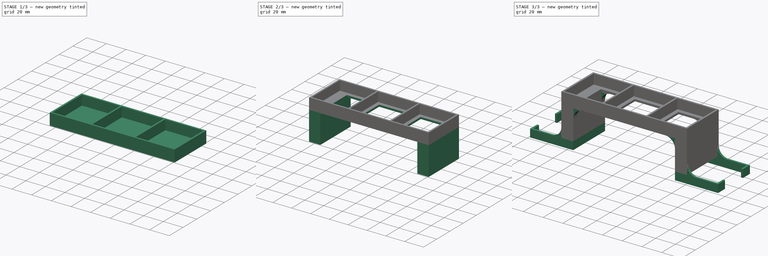
[diagram: build sequence overview — one tinted view per stage of 3, left to right]
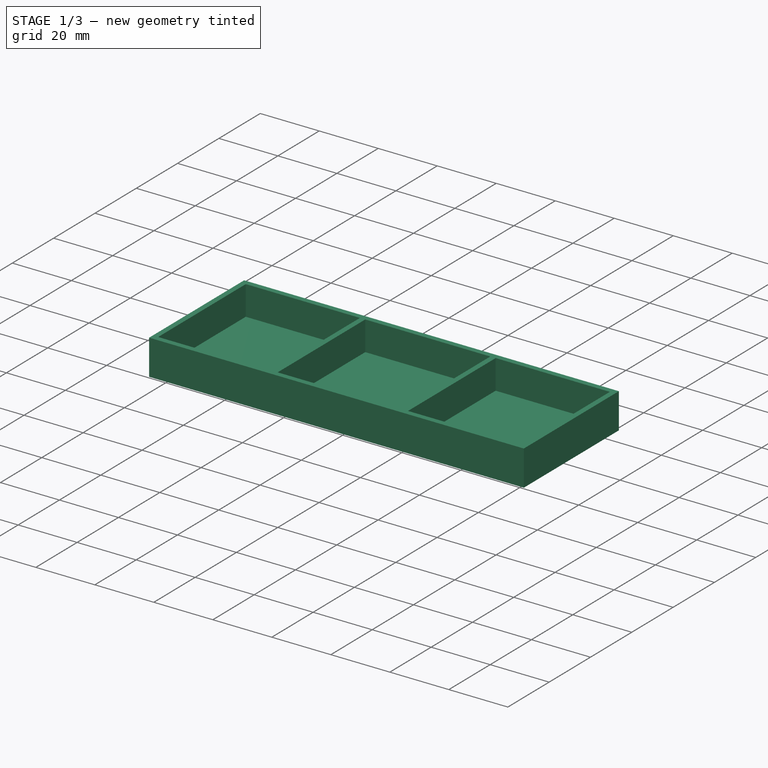
[diagram: stage 1 of 3 — iso view after this stage's code; geometry added in this stage tinted green]
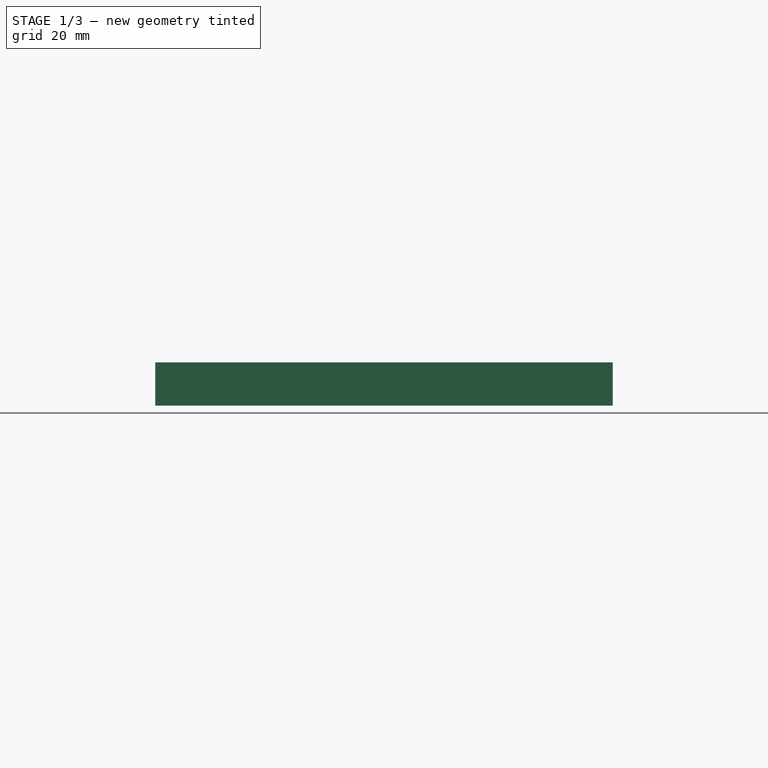
[diagram: stage 1 of 3 — front view after this stage's code; geometry added in this stage tinted green]
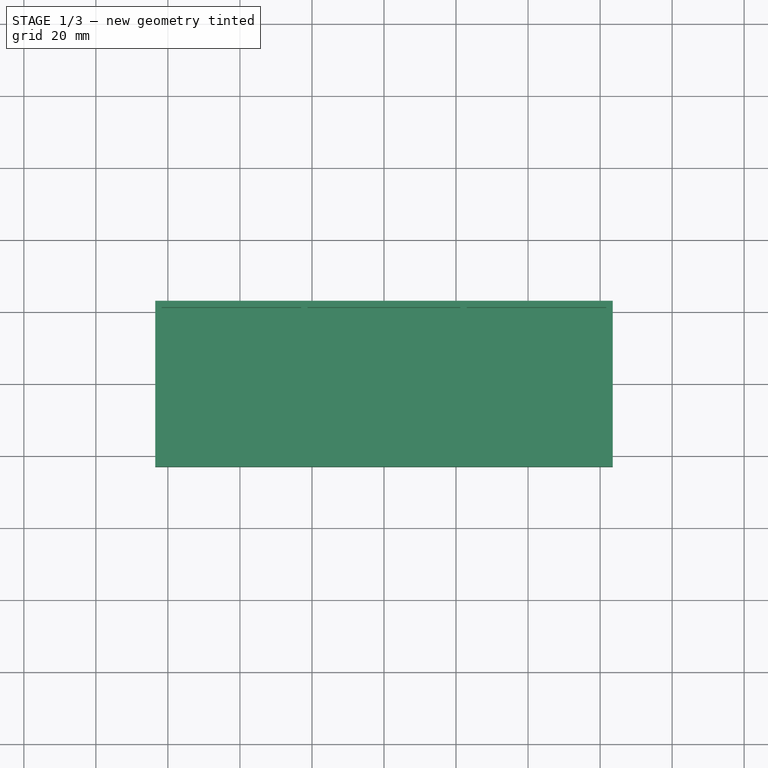
[diagram: stage 1 of 3 — top view after this stage's code; geometry added in this stage tinted green]
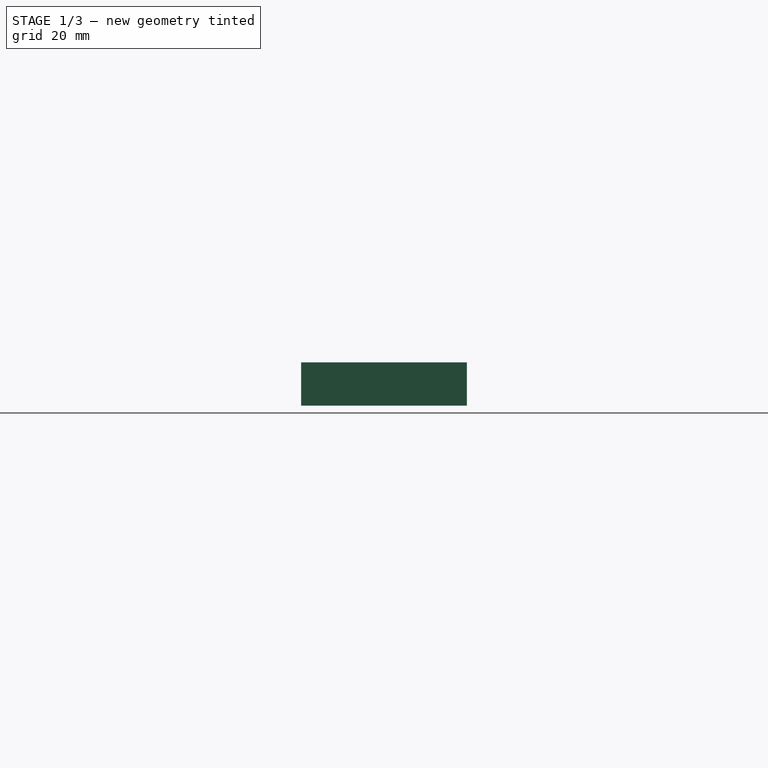
[diagram: stage 1 of 3 — right view after this stage's code; geometry added in this stage tinted green]
FCSTD DOCUMENT  (FreeCAD 0.15R4671 (Git))
Label: Sixth Motor Frame
License: All rights reserved
LicenseURL: http://en.wikipedia.org/wiki/All_rights_reserved
objects: Sketcher::SketchObject×5, PartDesign::Pad×4, PartDesign::Pocket×1, PartDesign::Fillet×1
note: 16 computed .brp shape members not serialized (recipe doc carries the construction recipe); baked Part::Feature solids carry a one-line shape summary decoded from their .brp

FEATURE [Sketcher::SketchObject] Sketch
  sketch-geometry (4):
    g0: LineSegment StartX=-63.5 StartY=23 StartZ=0 EndX=63.5 EndY=23 EndZ=0
    g1: LineSegment StartX=63.5 StartY=23 StartZ=0 EndX=63.5 EndY=-23 EndZ=0
    g2: LineSegment StartX=63.5 StartY=-23 StartZ=0 EndX=-63.5 EndY=-23 EndZ=0
    g3: LineSegment StartX=-63.5 StartY=-23 StartZ=0 EndX=-63.5 EndY=23 EndZ=0
  constraints (12):
    c: Coincident(g0,g1)
    c: Coincident(g1,g2)
    c: Coincident(g2,g3)
    c: Coincident(g3,g0)
    c: Horizontal(g0)
    c: Horizontal(g2)
    c: Vertical(g1)
    c: Vertical(g3)
    c: Symmetric(g0,g0,g-2)
    c: Symmetric(g0,g1,g-1)
    c: Distance(g3) = 46
    c: Distance(g0) = 127
FEATURE [PartDesign::Pad] Pad
  Length = 2
  Length2 = 100
  Sketch = -> Sketch
  Type = 0
FEATURE [Sketcher::SketchObject] Sketch001
  ExternalGeometry = -> [Pad]
  Placement = pos=(0,0,2) rot=(0,0,1;0rad)
  Support = -> Pad [Face6]
  sketch-geometry (16):
    g0: LineSegment StartX=-63.5 StartY=23 StartZ=0 EndX=63.5 EndY=23 EndZ=0
    g1: LineSegment StartX=63.5 StartY=-23 StartZ=0 EndX=-63.5 EndY=-23 EndZ=0
    g2: LineSegment StartX=-21.2 StartY=21.2 StartZ=0 EndX=21.2 EndY=21.2 EndZ=0
    g3: LineSegment StartX=21.2 StartY=21.2 StartZ=0 EndX=21.2 EndY=-21.2 EndZ=0
    g4: LineSegment StartX=21.2 StartY=-21.2 StartZ=0 EndX=-21.2 EndY=-21.2 EndZ=0
    g5: LineSegment StartX=-21.2 StartY=-21.2 StartZ=0 EndX=-21.2 EndY=21.2 EndZ=0
    g6: LineSegment StartX=-61.7 StartY=21.2 StartZ=0 EndX=-23 EndY=21.2 EndZ=0
    g7: LineSegment StartX=-23 StartY=21.2 StartZ=0 EndX=-23 EndY=-21.2 EndZ=0
    g8: LineSegment StartX=-23 StartY=-21.2 StartZ=0 EndX=-61.7 EndY=-21.2 EndZ=0
    g9: LineSegment StartX=-61.7 StartY=-21.2 StartZ=0 EndX=-61.7 EndY=21.2 EndZ=0
    g10: LineSegment StartX=23 StartY=21.2 StartZ=0 EndX=61.7 EndY=21.2 EndZ=0
    g11: LineSegment StartX=61.7 StartY=21.2 StartZ=0 EndX=61.7 EndY=-21.2 EndZ=0
    g12: LineSegment StartX=61.7 StartY=-21.2 StartZ=0 EndX=23 EndY=-21.2 EndZ=0
    g13: LineSegment StartX=23 StartY=-21.2 StartZ=0 EndX=23 EndY=21.2 EndZ=0
    g14: LineSegment StartX=63.5 StartY=23 StartZ=0 EndX=63.5 EndY=-23 EndZ=0
    g15: LineSegment StartX=-63.5 StartY=23 StartZ=0 EndX=-63.5 EndY=-23 EndZ=0
  constraints (43):
    c: Coincident(g-6,g0)
    c: Coincident(g0,g-5)
    c: Coincident(g1,g-6)
    c: Coincident(g2,g3)
    c: Coincident(g3,g4)
    c: Coincident(g4,g5)
    c: Coincident(g5,g2)
    c: Horizontal(g2)
    c: Horizontal(g4)
    c: Vertical(g3)
    c: Vertical(g5)
    c: Symmetric(g4,g3,g-2)
    c: Symmetric(g4,g2,g-1)
    c: Equal(g5,g2)
    c: Coincident(g6,g7)
    c: Coincident(g7,g8)
    c: Coincident(g8,g9)
    c: Coincident(g9,g6)
    c: Horizontal(g6)
    c: Horizontal(g8)
    c: Vertical(g7)
    c: Vertical(g9)
    c: Coincident(g10,g11)
    c: Coincident(g11,g12)
    c: Coincident(g12,g13)
    c: Coincident(g13,g10)
    c: Horizontal(g10)
    c: Horizontal(g12)
    c: Vertical(g11)
    c: Vertical(g13)
    c: Coincident(g14,g0)
    c: Coincident(g14,g1)
    c: Coincident(g15,g0)
    c: Coincident(g15,g1)
    c: Equal(g7,g5)
    c: Equal(g5,g13)
    c: Symmetric(g6,g7,g-1)
    c: Symmetric(g10,g6,g-2)
    c: DistanceX(g2,g10) = 1.8
    c: DistanceY(g10,g0) = 1.8
    c: DistanceX(g10,g0) = 1.8
    c: Symmetric(g10,g6,g-2)
    c: Coincident(g1,g-5)
FEATURE [PartDesign::Pad] Pad001
  Length = 10
  Length2 = 100
  Sketch = -> Sketch001
  Type = 0
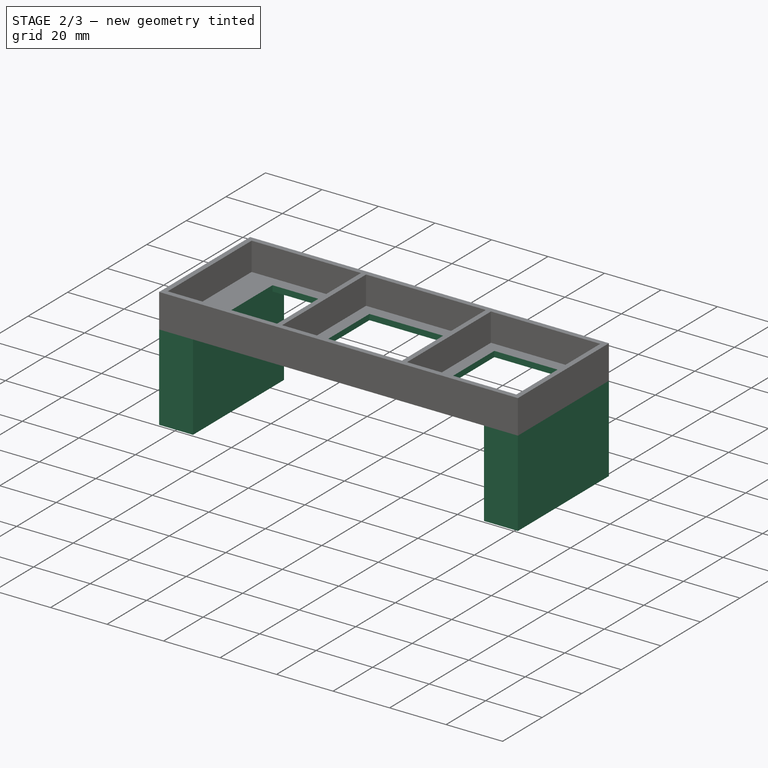
[diagram: stage 2 of 3 — iso view after this stage's code; geometry added in this stage tinted green]
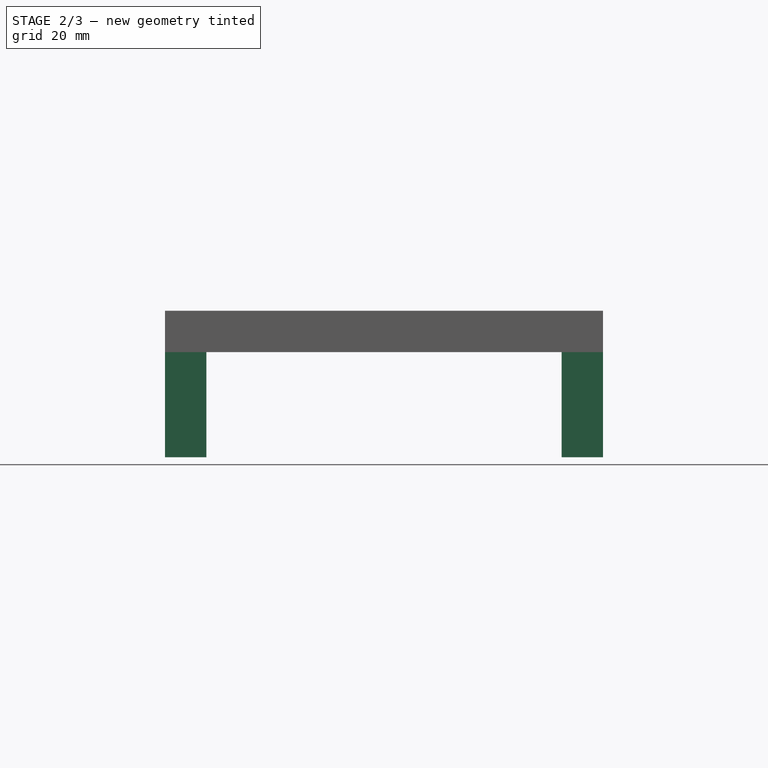
[diagram: stage 2 of 3 — front view after this stage's code; geometry added in this stage tinted green]
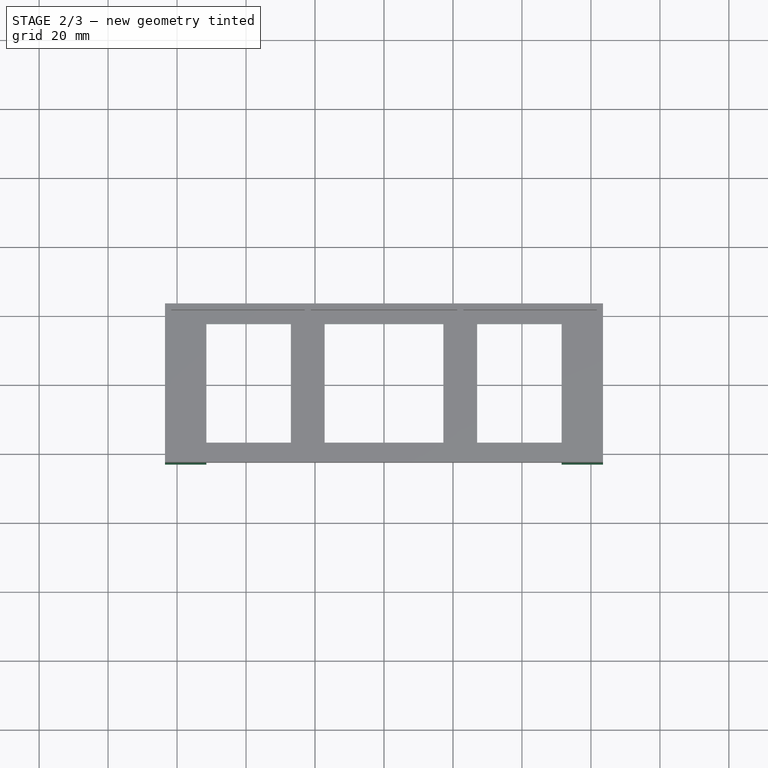
[diagram: stage 2 of 3 — top view after this stage's code; geometry added in this stage tinted green]
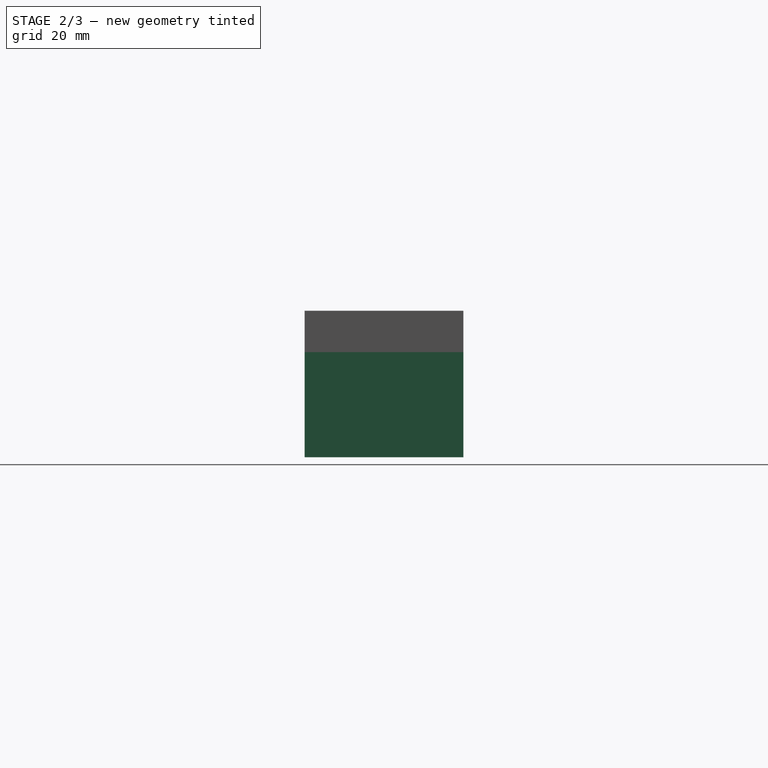
[diagram: stage 2 of 3 — right view after this stage's code; geometry added in this stage tinted green]
FEATURE [Sketcher::SketchObject] Sketch002
  ExternalGeometry = -> [Pad001]
  Placement = pos=(0,0,2) rot=(0,0,1;0rad)
  Support = -> Pad001 [Face25]
  sketch-geometry (12):
    g0: LineSegment StartX=-51.5 StartY=17.2 StartZ=0 EndX=-27 EndY=17.2 EndZ=0
    g1: LineSegment StartX=-27 StartY=17.2 StartZ=0 EndX=-27 EndY=-17.2 EndZ=0
    g2: LineSegment StartX=-27 StartY=-17.2 StartZ=0 EndX=-51.5 EndY=-17.2 EndZ=0
    g3: LineSegment StartX=-51.5 StartY=-17.2 StartZ=0 EndX=-51.5 EndY=17.2 EndZ=0
    g4: LineSegment StartX=-17.2 StartY=17.2 StartZ=0 EndX=17.2 EndY=17.2 EndZ=0
    g5: LineSegment StartX=17.2 StartY=17.2 StartZ=0 EndX=17.2 EndY=-17.2 EndZ=0
    g6: LineSegment StartX=17.2 StartY=-17.2 StartZ=0 EndX=-17.2 EndY=-17.2 EndZ=0
    g7: LineSegment StartX=-17.2 StartY=-17.2 StartZ=0 EndX=-17.2 EndY=17.2 EndZ=0
    g8: LineSegment StartX=27 StartY=17.2 StartZ=0 EndX=51.5 EndY=17.2 EndZ=0
    g9: LineSegment StartX=51.5 StartY=17.2 StartZ=0 EndX=51.5 EndY=-17.2 EndZ=0
    g10: LineSegment StartX=51.5 StartY=-17.2 StartZ=0 EndX=27 EndY=-17.2 EndZ=0
    g11: LineSegment StartX=27 StartY=-17.2 StartZ=0 EndX=27 EndY=17.2 EndZ=0
  constraints (34):
    c: Coincident(g0,g1)
    c: Coincident(g1,g2)
    c: Coincident(g2,g3)
    c: Coincident(g3,g0)
    c: Horizontal(g0)
    c: Horizontal(g2)
    c: Vertical(g1)
    c: Vertical(g3)
    c: Coincident(g4,g5)
    c: Coincident(g5,g6)
    c: Coincident(g6,g7)
    c: Coincident(g7,g4)
    c: Horizontal(g4)
    c: Horizontal(g6)
    c: Vertical(g5)
    c: Coincident(g8,g9)
    c: Coincident(g9,g10)
    c: Coincident(g10,g11)
    c: Coincident(g11,g8)
    c: Horizontal(g8)
    c: Horizontal(g10)
    c: Vertical(g9)
    c: Vertical(g11)
    c: Equal(g3,g5)
    c: Equal(g5,g9)
    c: Symmetric(g8,g9,g-1)
    c: Equal(g7,g4)
    c: Symmetric(g4,g6,g-1)
    c: Symmetric(g4,g4,g-2)
    c: Equal(g8,g0)
    c: Symmetric(g8,g0,g-2)
    c: DistanceY(g6,g-3) = -4
    c: DistanceX(g-6,g10) = 4
    c: Distance(g8,g0) = 103
FEATURE [PartDesign::Pocket] Pocket
  Length = 5
  Sketch = -> Sketch002
  Type = 1
FEATURE [Sketcher::SketchObject] Sketch004
  ExternalGeometry = -> [Pocket]
  Placement = pos=(0,0,0) rot=(1,0,0;3.14159rad)
  Support = -> Pocket [Face1]
  sketch-geometry (8):
    g0: LineSegment StartX=-63.5 StartY=23 StartZ=0 EndX=-51.5 EndY=23 EndZ=0
    g1: LineSegment StartX=-51.5 StartY=23 StartZ=0 EndX=-51.5 EndY=-23 EndZ=0
    g2: LineSegment StartX=-51.5 StartY=-23 StartZ=0 EndX=-63.5 EndY=-23 EndZ=0
    g3: LineSegment StartX=-63.5 StartY=-23 StartZ=0 EndX=-63.5 EndY=23 EndZ=0
    g4: LineSegment StartX=63.5 StartY=23 StartZ=0 EndX=51.5 EndY=23 EndZ=0
    g5: LineSegment StartX=51.5 StartY=23 StartZ=0 EndX=51.5 EndY=-23 EndZ=0
    g6: LineSegment StartX=51.5 StartY=-23 StartZ=0 EndX=63.5 EndY=-23 EndZ=0
    g7: LineSegment StartX=63.5 StartY=-23 StartZ=0 EndX=63.5 EndY=23 EndZ=0
  constraints (22):
    c: Coincident(g0,g1)
    c: Coincident(g1,g2)
    c: Coincident(g2,g3)
    c: Coincident(g3,g0)
    c: Horizontal(g0)
    c: Horizontal(g2)
    c: Vertical(g1)
    c: Vertical(g3)
    c: Coincident(g0,g-4)
    c: PointOnObject(g1,g-5)
    c: Coincident(g4,g5)
    c: Coincident(g5,g6)
    c: Coincident(g6,g7)
    c: Coincident(g7,g4)
    c: Horizontal(g4)
    c: Horizontal(g6)
    c: Vertical(g5)
    c: Vertical(g7)
    c: Coincident(g4,g-6)
    c: PointOnObject(g5,g-5)
    c: Symmetric(g5,g1,g-2)
    c: Distance(g0,g4) = 103
FEATURE [PartDesign::Pad] Pad002
  Length = 30.5
  Length2 = 100
  Sketch = -> Sketch004
  Type = 0
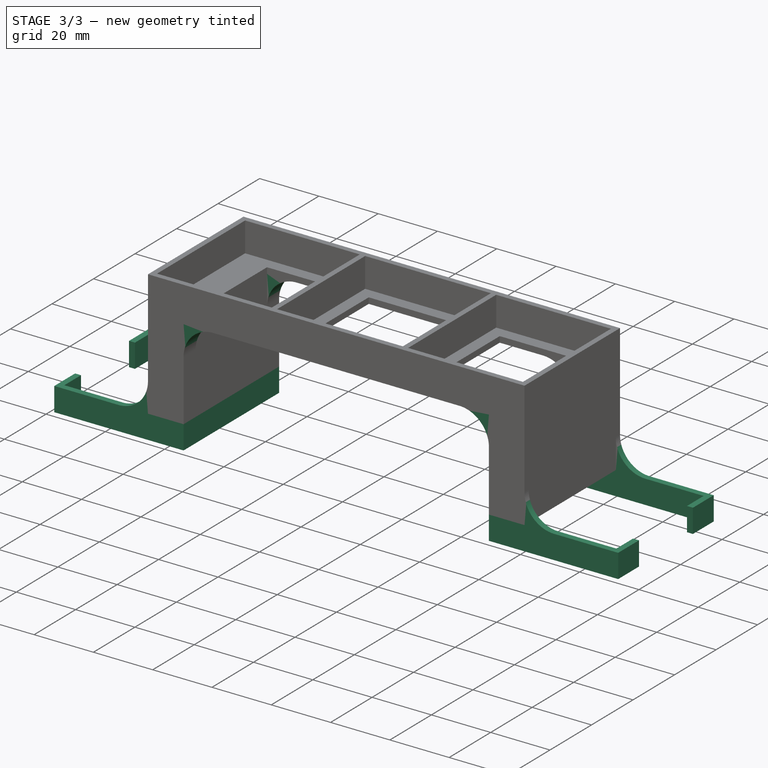
[diagram: stage 3 of 3 — iso view after this stage's code; geometry added in this stage tinted green]
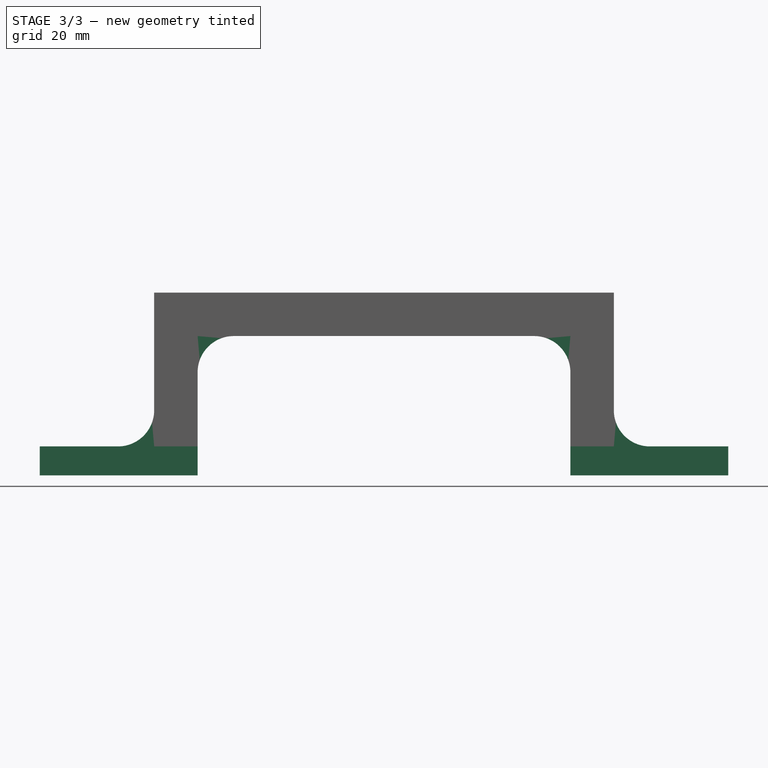
[diagram: stage 3 of 3 — front view after this stage's code; geometry added in this stage tinted green]
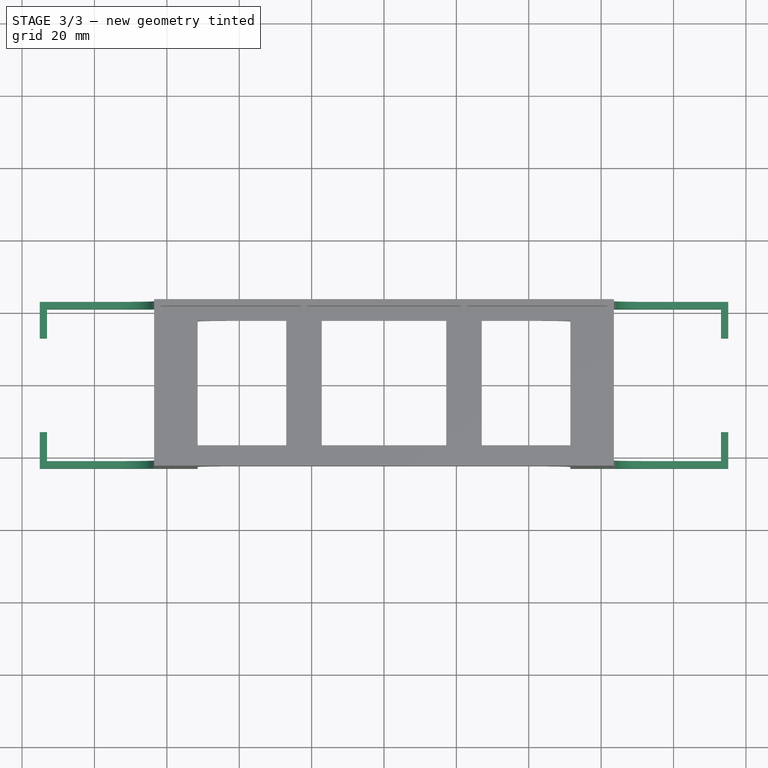
[diagram: stage 3 of 3 — top view after this stage's code; geometry added in this stage tinted green]
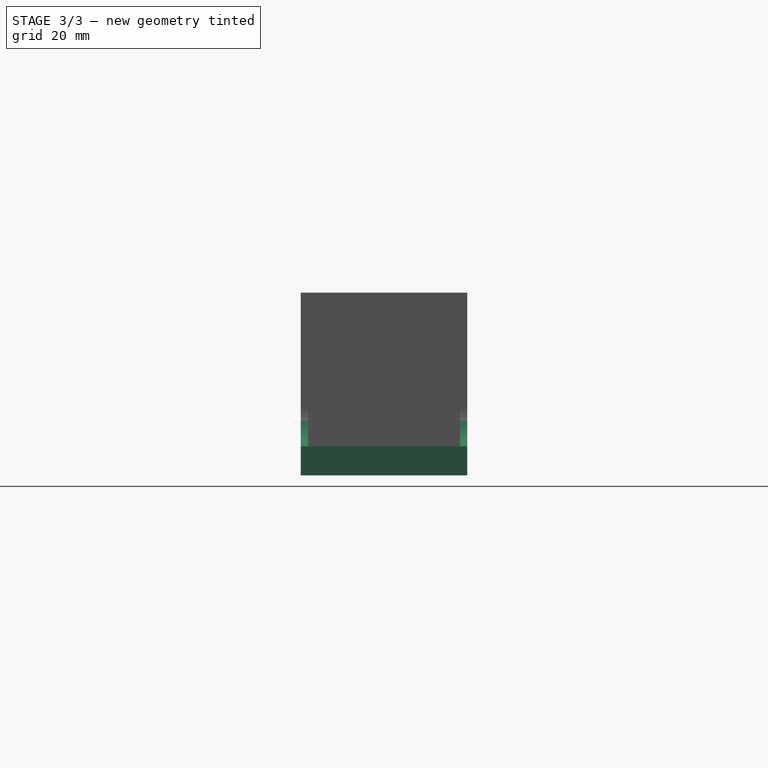
[diagram: stage 3 of 3 — right view after this stage's code; geometry added in this stage tinted green]
FEATURE [Sketcher::SketchObject] Sketch005
  ExternalGeometry = -> [Pad002]
  Placement = pos=(0,0,-30.5) rot=(1,0,0;3.14159rad)
  Support = -> Pad002 [Face26]
  sketch-geometry (24):
    g0: LineSegment StartX=-51.5 StartY=23 StartZ=0 EndX=-95.1 EndY=23 EndZ=0
    g1: LineSegment StartX=-95.1 StartY=23 StartZ=0 EndX=-95.1 EndY=13 EndZ=0
    g2: LineSegment StartX=-95.1 StartY=13 StartZ=0 EndX=-93.1 EndY=13 EndZ=0
    g3: LineSegment StartX=-93.1 StartY=13 StartZ=0 EndX=-93.1 EndY=21 EndZ=0
    g4: LineSegment StartX=-93.1 StartY=21 StartZ=0 EndX=-53.5 EndY=21 EndZ=0
    g5: LineSegment StartX=-53.5 StartY=21 StartZ=0 EndX=-53.5 EndY=-21 EndZ=0
    g6: LineSegment StartX=-53.5 StartY=-21 StartZ=0 EndX=-93.1 EndY=-21 EndZ=0
    g7: LineSegment StartX=-93.1 StartY=-21 StartZ=0 EndX=-93.1 EndY=-13 EndZ=0
    g8: LineSegment StartX=-93.1 StartY=-13 StartZ=0 EndX=-95.1 EndY=-13 EndZ=0
    g9: LineSegment StartX=-95.1 StartY=-13 StartZ=0 EndX=-95.1 EndY=-23 EndZ=0
    g10: LineSegment StartX=-95.1 StartY=-23 StartZ=0 EndX=-51.5 EndY=-23 EndZ=0
    g11: LineSegment StartX=-51.5 StartY=-23 StartZ=0 EndX=-51.5 EndY=23 EndZ=0
    g12: LineSegment StartX=51.5 StartY=23 StartZ=0 EndX=95.1 EndY=23 EndZ=0
    g13: LineSegment StartX=95.1 StartY=23 StartZ=0 EndX=95.1 EndY=13 EndZ=0
    g14: LineSegment StartX=95.1 StartY=13 StartZ=0 EndX=93.1 EndY=13 EndZ=0
    g15: LineSegment StartX=93.1 StartY=13 StartZ=0 EndX=93.1 EndY=21 EndZ=0
    g16: LineSegment StartX=93.1 StartY=21 StartZ=0 EndX=53.5 EndY=21 EndZ=0
    g17: LineSegment StartX=53.5 StartY=21 StartZ=0 EndX=53.5 EndY=-21 EndZ=0
    g18: LineSegment StartX=53.5 StartY=-21 StartZ=0 EndX=93.1 EndY=-21 EndZ=0
    g19: LineSegment StartX=93.1 StartY=-21 StartZ=0 EndX=93.1 EndY=-13 EndZ=0
    g20: LineSegment StartX=93.1 StartY=-13 StartZ=0 EndX=95.1 EndY=-13 EndZ=0
    g21: LineSegment StartX=95.1 StartY=-13 StartZ=0 EndX=95.1 EndY=-23 EndZ=0
    g22: LineSegment StartX=95.1 StartY=-23 StartZ=0 EndX=51.5 EndY=-23 EndZ=0
    g23: LineSegment StartX=51.5 StartY=-23 StartZ=0 EndX=51.5 EndY=23 EndZ=0
  constraints (63):
    c: Coincident(g-6,g0)
    c: Horizontal(g0)
    c: Coincident(g0,g1)
    c: Vertical(g1)
    c: Coincident(g1,g2)
    c: Coincident(g2,g3)
    c: Vertical(g3)
    c: Coincident(g3,g4)
    c: Horizontal(g4)
    c: Coincident(g4,g5)
    c: Vertical(g5)
    c: Coincident(g5,g6)
    c: Horizontal(g6)
    c: Coincident(g6,g7)
    c: Vertical(g7)
    c: Coincident(g7,g8)
    c: Coincident(g8,g9)
    c: Vertical(g9)
    c: Coincident(g9,g10)
    c: Coincident(g10,g-6)
    c: Horizontal(g10)
    c: Coincident(g10,g11)
    c: Coincident(g11,g0)
    c: Equal(g8,g2)
    c: Distance(g2) = 2
    c: Horizontal(g2)
    c: DistanceY(g3,g0) = 2
    c: DistanceX(g4,g0) = 2
    c: Symmetric(g5,g4,g-1)
    c: Horizontal(g8)
    c: Symmetric(g7,g2,g-1)
    c: Distance(g4) = 39.6
    c: Distance(g7) = 8
    c: Coincident(g-8,g12)
    c: Horizontal(g12)
    c: Coincident(g12,g13)
    c: Vertical(g13)
    c: Coincident(g13,g14)
    c: Coincident(g14,g15)
    c: Vertical(g15)
    c: Coincident(g15,g16)
    c: Horizontal(g16)
    c: Coincident(g16,g17)
    c: Vertical(g17)
    c: Coincident(g17,g18)
    c: Horizontal(g18)
    c: Coincident(g18,g19)
    c: Vertical(g19)
    c: Coincident(g19,g20)
    c: Horizontal(g20)
    c: Coincident(g20,g21)
    c: Vertical(g21)
    c: Coincident(g21,g22)
    c: Coincident(g22,g-10)
    c: Horizontal(g22)
    c: Coincident(g22,g23)
    c: Coincident(g23,g12)
    c: Symmetric(g15,g3,g-2)
    c: Symmetric(g13,g1,g-2)
    c: Horizontal(g14)
    c: Symmetric(g20,g13,g-1)
    c: Symmetric(g18,g15,g-1)
    c: Symmetric(g16,g4,g-2)
FEATURE [PartDesign::Pad] Pad003
  Length = 8
  Length2 = 100
  Sketch = -> Sketch005
  Type = 0
FEATURE [PartDesign::Fillet] Fillet
  Base = -> Pad003 [Edge120,Edge118,Edge84,Edge82,Edge41,Edge45,Edge40,Edge36]
  Radius = 10
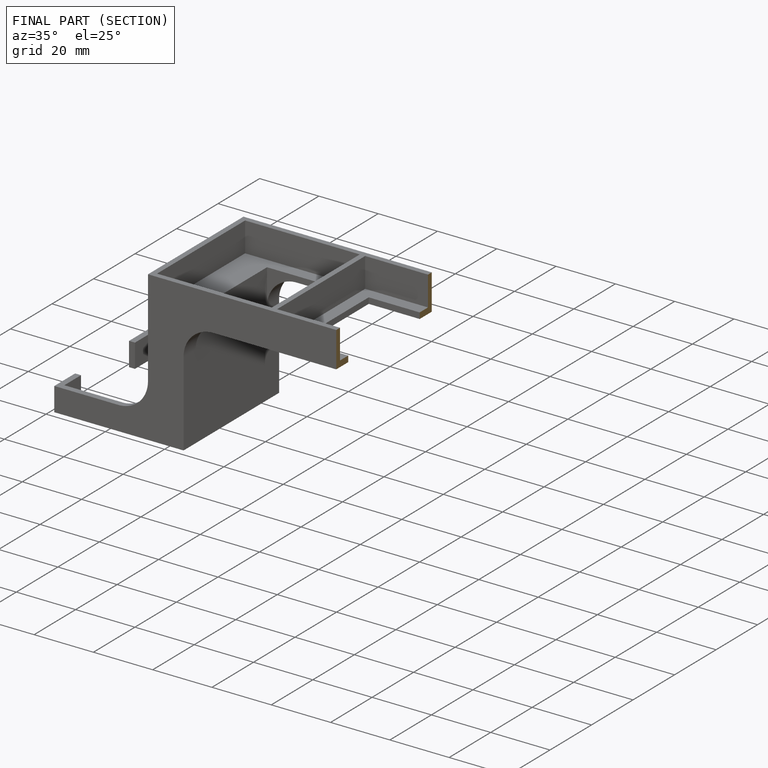
[diagram: finished part — half-section view (interior)]
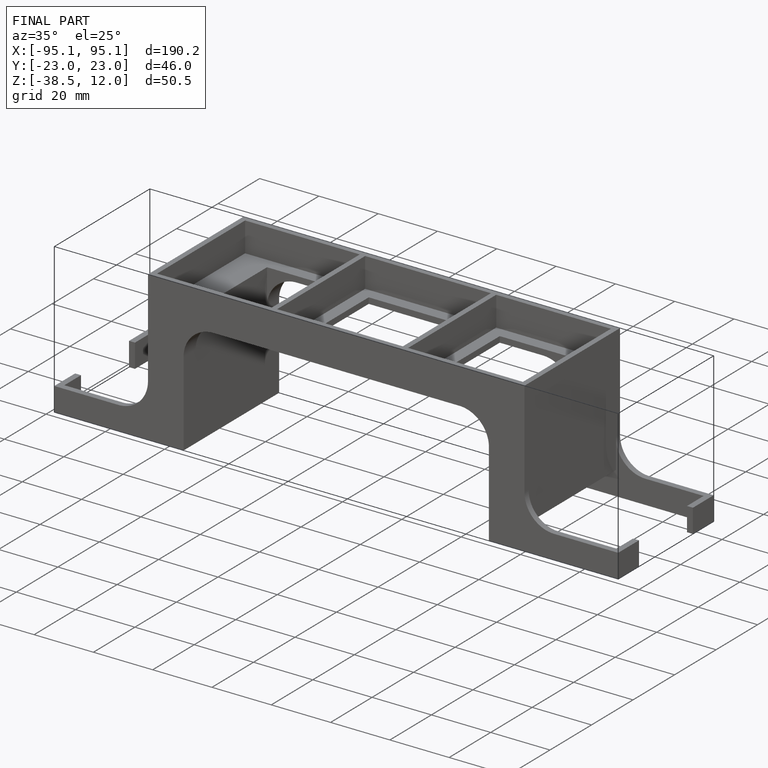
[diagram: finished part — iso view with bounding-box wireframe]
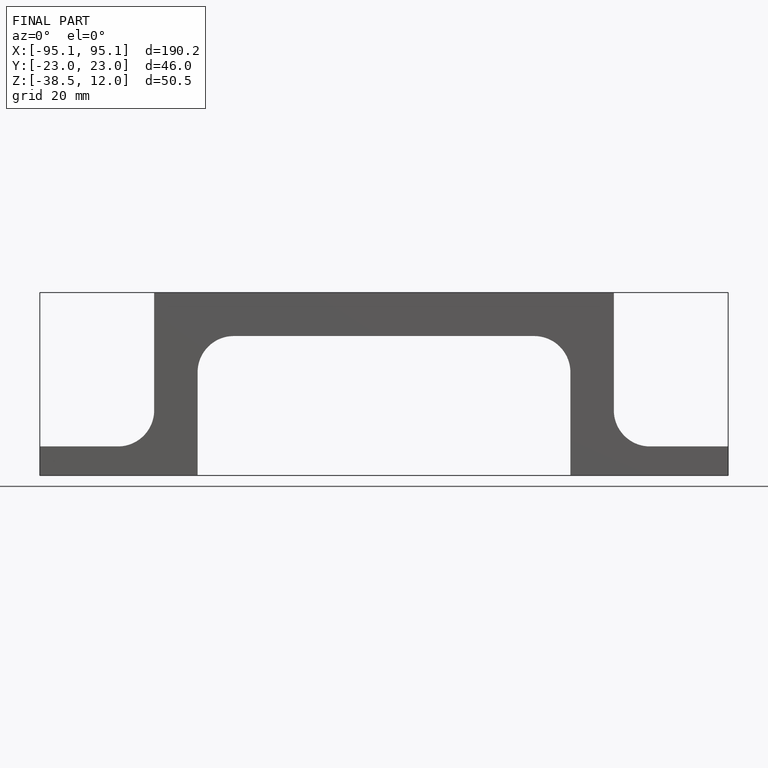
[diagram: finished part — front view with bounding-box wireframe]
